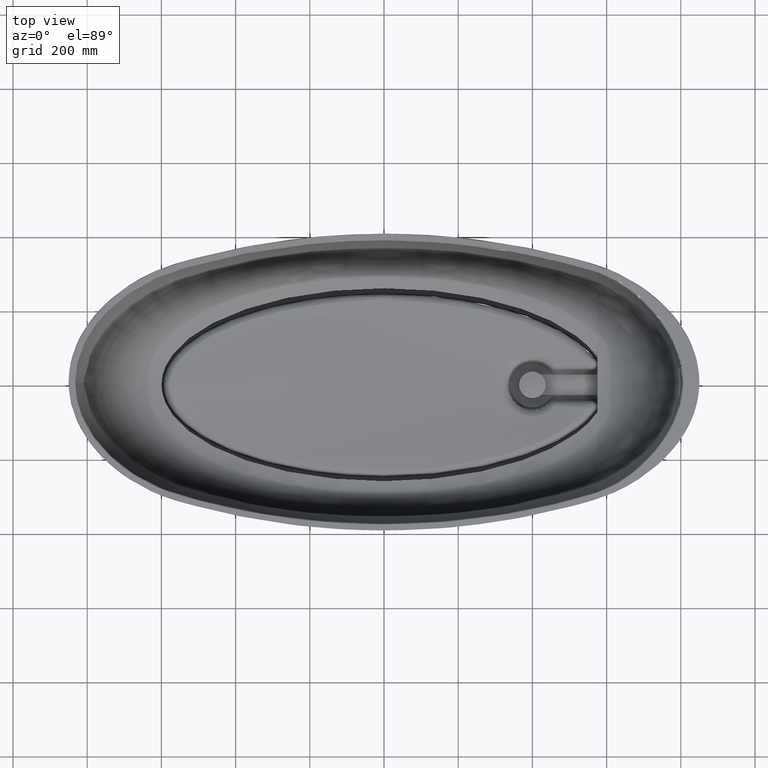
[diagram: clean part render]
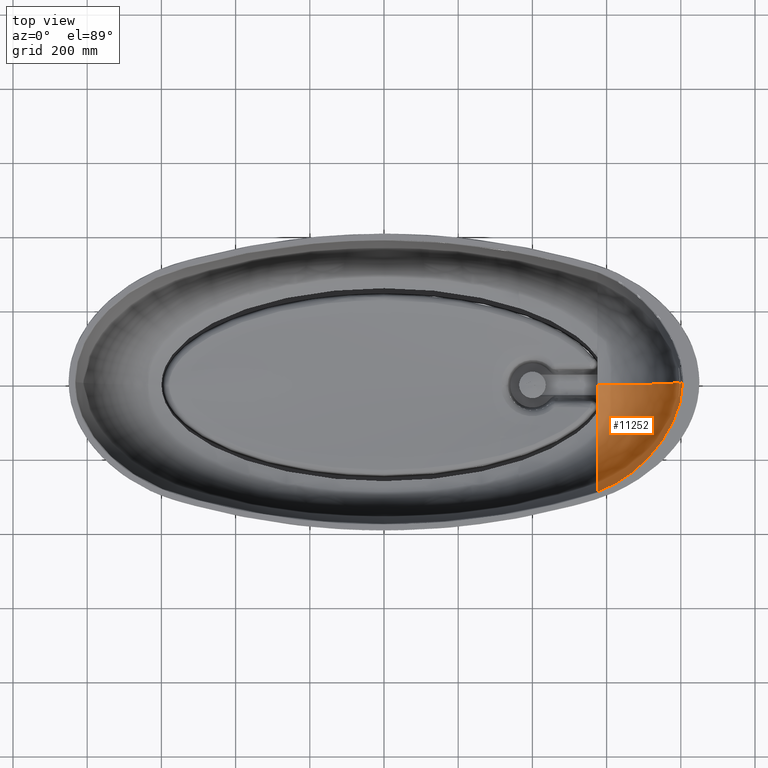
[diagram: same view with one face highlighted and labeled with its STEP entity id]
A machine part, top view. The second image highlights one B-rep face of the part: STEP entity #11252.
In plain terms, the highlighted face is a freeform B-spline surface patch.
Its self-contained STEP definition (entity closure, byte-faithful):
#11252=ADVANCED_FACE('',(#12626),#34462,.T.);
#12626=FACE_OUTER_BOUND('',#14111,.T.);
#14111=EDGE_LOOP('',(#20617,#20618,#20619,#20620,#20621,#20622,#20623));
#20617=ORIENTED_EDGE('',*,*,#25889,.F.);
#20618=ORIENTED_EDGE('',*,*,#25880,.F.);
#20619=ORIENTED_EDGE('',*,*,#25892,.F.);
#20620=ORIENTED_EDGE('',*,*,#25891,.F.);
#20621=ORIENTED_EDGE('',*,*,#25890,.F.);
#20622=ORIENTED_EDGE('',*,*,#25882,.F.);
#20623=ORIENTED_EDGE('',*,*,#25974,.F.);
#25880=EDGE_CURVE('',#33792,#33781,#29508,.T.);
#25882=EDGE_CURVE('',#33778,#33793,#29510,.T.);
#25889=EDGE_CURVE('',#33781,#33782,#29517,.T.);
#25890=EDGE_CURVE('',#33793,#33790,#29518,.T.);
#25891=EDGE_CURVE('',#33790,#33791,#29519,.T.);
#25892=EDGE_CURVE('',#33791,#33792,#29520,.T.);
#25974=EDGE_CURVE('',#33782,#33778,#29553,.T.);
#29508=B_SPLINE_CURVE_WITH_KNOTS('',3,(#156972,#156973,#156974,#156975),
 .UNSPECIFIED.,.F.,.F.,(4,4),(0.,1.),.UNSPECIFIED.);
#29510=B_SPLINE_CURVE_WITH_KNOTS('',3,(#156980,#156981,#156982,#156983,
#156984,#156985,#156986,#156987,#156988,#156989,#156990,#156991,#156992,
#156993,#156994,#156995,#156996,#156997,#156998,#156999,#157000,#157001,
#157002,#157003,#157004,#157005,#157006,#157007,#157008),.UNSPECIFIED.,
 .F.,.F.,(4,1,1,1,1,1,1,1,1,1,1,1,1,1,1,1,1,1,1,1,1,1,1,1,1,1,4),(4.,4.01704328014299,
4.0202388951698,4.02130410017874,4.02236930518768,4.02556492021449,4.03408656028598,
4.06817312057196,4.10225968085794,4.13634624114392,4.15338952128691,4.1704328014299,
4.20451936171589,4.23860592200187,4.27269248228785,4.30677904257383,4.34086560285981,
4.37495216314579,4.40903872343177,4.47721184400373,4.51129840428971,4.5453849645757,
4.61355808514766,4.68173120571962,4.81807744686355,4.95442368800747,5.),
 .UNSPECIFIED.);
#29517=B_SPLINE_CURVE_WITH_KNOTS('',3,(#157097,#157098,#157099,#157100,
#157101,#157102,#157103,#157104,#157105,#157106,#157107,#157108),
 .UNSPECIFIED.,.F.,.F.,(4,2,2,2,2,4),(6.,6.2418621296976,6.36769641347854,
6.49608280290512,6.75572383476138,7.),.UNSPECIFIED.);
#29518=B_SPLINE_CURVE_WITH_KNOTS('',3,(#157109,#157110,#157111,#157112),
 .UNSPECIFIED.,.F.,.F.,(4,4),(2.,3.),.UNSPECIFIED.);
#29519=B_SPLINE_CURVE_WITH_KNOTS('',3,(#157113,#157114,#157115,#157116,
#157117,#157118,#157119,#157120,#157121,#157122,#157123,#157124,#157125,
#157126),.UNSPECIFIED.,.F.,.F.,(4,2,2,2,2,2,4),(3.,3.19572112751265,3.3172770653698,
3.50084059097141,3.683261250967,3.80420503798681,4.),.UNSPECIFIED.);
#29520=B_SPLINE_CURVE_WITH_KNOTS('',3,(#157127,#157128,#157129,#157130),
 .UNSPECIFIED.,.F.,.F.,(4,4),(4.,5.),.UNSPECIFIED.);
#29553=B_SPLINE_CURVE_WITH_KNOTS('',3,(#157485,#157486,#157487,#157488,
#157489,#157490,#157491,#157492,#157493,#157494,#157495,#157496,#157497,
#157498,#157499,#157500,#157501,#157502,#157503,#157504,#157505,#157506,
#157507,#157508,#157509,#157510,#157511,#157512,#157513,#157514,#157515,
#157516,#157517,#157518,#157519,#157520,#157521,#157522,#157523,#157524,
#157525,#157526,#157527,#157528,#157529),.UNSPECIFIED.,.F.,.F.,(4,1,1,1,
1,1,1,1,1,1,1,1,1,1,1,1,1,1,1,1,1,1,1,1,1,1,3,1,1,1,1,1,1,1,1,1,1,1,1,1,
4),(7.,7.12058403241916,7.24621488493071,7.37184573744226,7.43466116369803,
7.49747658995381,7.52888430308169,7.56029201620958,7.62310744246535,7.65451515559324,
7.68592286872113,7.71733058184902,7.7487382949769,7.78014600810479,7.81155372123268,
7.84296143436056,7.85866529092451,7.87436914748845,7.90577686061634,7.93718457374422,
7.96859228687211,7.97644421515408,7.97938868825982,7.98037017929507,7.98135167033032,
7.98429614343606,8.,8.015625,8.03125,8.046875,8.0625,8.09375,8.125,8.1875,
8.25,8.375,8.5,8.625,8.75,8.875,9.),.UNSPECIFIED.);
#33778=VERTEX_POINT('',#156886);
#33781=VERTEX_POINT('',#156889);
#33782=VERTEX_POINT('',#156890);
#33790=VERTEX_POINT('',#156898);
#33791=VERTEX_POINT('',#156899);
#33792=VERTEX_POINT('',#156900);
#33793=VERTEX_POINT('',#156901);
#34462=B_SPLINE_SURFACE_WITH_KNOTS('',3,3,((#156103,#156104,#156105,#156106,
#156107,#156108,#156109,#156110,#156111,#156112,#156113,#156114,#156115,
#156116,#156117,#156118,#156119,#156120,#156121,#156122,#156123,#156124,
#156125,#156126,#156127,#156128,#156129,#156130,#156131,#156132,#156133),
(#156134,#156135,#156136,#156137,#156138,#156139,#156140,#156141,#156142,
#156143,#156144,#156145,#156146,#156147,#156148,#156149,#156150,#156151,
#156152,#156153,#156154,#156155,#156156,#156157,#156158,#156159,#156160,
#156161,#156162,#156163,#156164),(#156165,#156166,#156167,#156168,#156169,
#156170,#156171,#156172,#156173,#156174,#156175,#156176,#156177,#156178,
#156179,#156180,#156181,#156182,#156183,#156184,#156185,#156186,#156187,
#156188,#156189,#156190,#156191,#156192,#156193,#156194,#156195),(#156196,
#156197,#156198,#156199,#156200,#156201,#156202,#156203,#156204,#156205,
#156206,#156207,#156208,#156209,#156210,#156211,#156212,#156213,#156214,
#156215,#156216,#156217,#156218,#156219,#156220,#156221,#156222,#156223,
#156224,#156225,#156226),(#156227,#156228,#156229,#156230,#156231,#156232,
#156233,#156234,#156235,#156236,#156237,#156238,#156239,#156240,#156241,
#156242,#156243,#156244,#156245,#156246,#156247,#156248,#156249,#156250,
#156251,#156252,#156253,#156254,#156255,#156256,#156257),(#156258,#156259,
#156260,#156261,#156262,#156263,#156264,#156265,#156266,#156267,#156268,
#156269,#156270,#156271,#156272,#156273,#156274,#156275,#156276,#156277,
#156278,#156279,#156280,#156281,#156282,#156283,#156284,#156285,#156286,
#156287,#156288),(#156289,#156290,#156291,#156292,#156293,#156294,#156295,
#156296,#156297,#156298,#156299,#156300,#156301,#156302,#156303,#156304,
#156305,#156306,#156307,#156308,#156309,#156310,#156311,#156312,#156313,
#156314,#156315,#156316,#156317,#156318,#156319),(#156320,#156321,#156322,
#156323,#156324,#156325,#156326,#156327,#156328,#156329,#156330,#156331,
#156332,#156333,#156334,#156335,#156336,#156337,#156338,#156339,#156340,
#156341,#156342,#156343,#156344,#156345,#156346,#156347,#156348,#156349,
#156350),(#156351,#156352,#156353,#156354,#156355,#156356,#156357,#156358,
#156359,#156360,#156361,#156362,#156363,#156364,#156365,#156366,#156367,
#156368,#156369,#156370,#156371,#156372,#156373,#156374,#156375,#156376,
#156377,#156378,#156379,#156380,#156381),(#156382,#156383,#156384,#156385,
#156386,#156387,#156388,#156389,#156390,#156391,#156392,#156393,#156394,
#156395,#156396,#156397,#156398,#156399,#156400,#156401,#156402,#156403,
#156404,#156405,#156406,#156407,#156408,#156409,#156410,#156411,#156412),
(#156413,#156414,#156415,#156416,#156417,#156418,#156419,#156420,#156421,
#156422,#156423,#156424,#156425,#156426,#156427,#156428,#156429,#156430,
#156431,#156432,#156433,#156434,#156435,#156436,#156437,#156438,#156439,
#156440,#156441,#156442,#156443),(#156444,#156445,#156446,#156447,#156448,
#156449,#156450,#156451,#156452,#156453,#156454,#156455,#156456,#156457,
#156458,#156459,#156460,#156461,#156462,#156463,#156464,#156465,#156466,
#156467,#156468,#156469,#156470,#156471,#156472,#156473,#156474),(#156475,
#156476,#156477,#156478,#156479,#156480,#156481,#156482,#156483,#156484,
#156485,#156486,#156487,#156488,#156489,#156490,#156491,#156492,#156493,
#156494,#156495,#156496,#156497,#156498,#156499,#156500,#156501,#156502,
#156503,#156504,#156505),(#156506,#156507,#156508,#156509,#156510,#156511,
#156512,#156513,#156514,#156515,#156516,#156517,#156518,#156519,#156520,
#156521,#156522,#156523,#156524,#156525,#156526,#156527,#156528,#156529,
#156530,#156531,#156532,#156533,#156534,#156535,#156536),(#156537,#156538,
#156539,#156540,#156541,#156542,#156543,#156544,#156545,#156546,#156547,
#156548,#156549,#156550,#156551,#156552,#156553,#156554,#156555,#156556,
#156557,#156558,#156559,#156560,#156561,#156562,#156563,#156564,#156565,
#156566,#156567),(#156568,#156569,#156570,#156571,#156572,#156573,#156574,
#156575,#156576,#156577,#156578,#156579,#156580,#156581,#156582,#156583,
#156584,#156585,#156586,#156587,#156588,#156589,#156590,#156591,#156592,
#156593,#156594,#156595,#156596,#156597,#156598),(#156599,#156600,#156601,
#156602,#156603,#156604,#156605,#156606,#156607,#156608,#156609,#156610,
#156611,#156612,#156613,#156614,#156615,#156616,#156617,#156618,#156619,
#156620,#156621,#156622,#156623,#156624,#156625,#156626,#156627,#156628,
#156629)),.UNSPECIFIED.,.F.,.F.,.F.,(4,1,1,1,1,1,1,1,1,1,1,1,1,1,4),(4,
2,1,1,1,1,1,1,1,1,1,1,1,1,1,1,1,1,1,1,1,1,1,1,1,1,1,4),(0.,0.015625,0.03125,
0.046875,0.0625,0.09375,0.125,0.1875,0.25,0.375,0.5,0.625,0.75,0.875,1.),
(0.,0.0476190476190477,0.166666666666667,0.285714285714286,0.404761904761905,
0.464285714285714,0.523809523809524,0.553571428571429,0.583333333333333,
0.642857142857143,0.672619047619048,0.702380952380952,0.732142857142857,
0.761904761904762,0.791666666666667,0.821428571428571,0.851190476190476,
0.866071428571429,0.880952380952381,0.910714285714286,0.94047619047619,
0.970238095238095,0.977678571428571,0.98046875,0.98139880952381,0.982328869047619,
0.985119047619048,1.),.UNSPECIFIED.);
#156103=CARTESIAN_POINT('',(174.999130643164,-299.388268595295,478.034238478728));
#156104=CARTESIAN_POINT('',(174.999420428776,-298.352637917445,469.174438369371));
#156105=CARTESIAN_POINT('',(174.999710214388,-297.317007239595,460.314638260014));
#156106=CARTESIAN_POINT('',(175.00072446403,-293.692299867119,429.305337877264));
#156107=CARTESIAN_POINT('',(175.003077154341,-288.261470238738,385.031795923752));
#156108=CARTESIAN_POINT('',(175.000750142309,-278.861585353443,318.787846463549));
#156109=CARTESIAN_POINT('',(174.999295868186,-269.478274301766,263.820978523691));
#156110=CARTESIAN_POINT('',(175.000136627797,-260.422027111646,220.134758844099));
#156111=CARTESIAN_POINT('',(174.99902897646,-253.836364547655,193.044804682452));
#156112=CARTESIAN_POINT('',(174.998805142223,-247.831835665824,171.560796861443));
#156113=CARTESIAN_POINT('',(174.999213453562,-241.224283258894,150.250564207692));
#156114=CARTESIAN_POINT('',(174.998977205088,-233.501574693352,129.31660626298));
#156115=CARTESIAN_POINT('',(175.00029888287,-224.19387001814,109.030233129883));
#156116=CARTESIAN_POINT('',(175.001034819381,-216.204895844321,94.3287454547133));
#156117=CARTESIAN_POINT('',(175.001633075543,-207.009668258734,80.3191380125979));
#156118=CARTESIAN_POINT('',(175.000022196962,-196.434764794036,67.336108094081));
#156119=CARTESIAN_POINT('',(175.001843353779,-184.30053021774,55.7593886116595));
#156120=CARTESIAN_POINT('',(174.999455497699,-170.712940260174,45.9322749272538));
#156121=CARTESIAN_POINT('',(174.998790670813,-158.349077713338,39.4371885923894));
#156122=CARTESIAN_POINT('',(174.99873896707,-148.031661578973,35.1831238437353));
#156123=CARTESIAN_POINT('',(174.9989753378,-137.488297310385,31.5275662526598));
#156124=CARTESIAN_POINT('',(174.997227819998,-124.003985685467,27.972351266792));
#156125=CARTESIAN_POINT('',(174.997966007626,-107.533037538149,24.950610493724));
#156126=CARTESIAN_POINT('',(174.99871408687,-95.0908068108768,23.3522051793587));
#156127=CARTESIAN_POINT('',(174.999294572132,-87.6376736175827,22.5894559335856));
#156128=CARTESIAN_POINT('',(174.999450132126,-85.5563040834621,22.3902591047801));
#156129=CARTESIAN_POINT('',(174.999513024916,-84.6888673066986,22.309270400798));
#156130=CARTESIAN_POINT('',(174.999574797646,-83.8213335439738,22.2292766439347));
#156131=CARTESIAN_POINT('',(174.999811663103,-80.3504446012106,21.9171808716345));
#156132=CARTESIAN_POINT('',(174.999973418149,-77.0499959370699,21.6551576704996));
#156133=CARTESIAN_POINT('',(175.000000000374,-74.2695956385836,21.4548366049806));
#156134=CARTESIAN_POINT('',(176.839205282708,-298.819879766341,478.373990655156));
#156135=CARTESIAN_POINT('',(176.826108853736,-297.768474624589,469.400723690803));
#156136=CARTESIAN_POINT('',(176.813012424764,-296.717069482836,460.42745672645));
#156137=CARTESIAN_POINT('',(176.767174923362,-293.0371514867,429.021022351215));
#156138=CARTESIAN_POINT('',(176.703761048132,-287.534100038304,384.288862420038));
#156139=CARTESIAN_POINT('',(176.598847083864,-278.044941787954,317.656035407103));
#156140=CARTESIAN_POINT('',(176.503295651574,-268.600388993576,262.589290012918));
#156141=CARTESIAN_POINT('',(176.419446456408,-259.502270619609,218.939127271346));
#156142=CARTESIAN_POINT('',(176.359462430517,-252.893091748145,191.915060931463));
#156143=CARTESIAN_POINT('',(176.307287002408,-246.87160396948,170.506634663546));
#156144=CARTESIAN_POINT('',(176.251154693148,-240.247895566163,149.285972073297));
#156145=CARTESIAN_POINT('',(176.186575941848,-232.51209003913,128.459873270819));
#156146=CARTESIAN_POINT('',(176.110233559387,-223.195327295008,108.295008778723));
#156147=CARTESIAN_POINT('',(176.044048173428,-215.203341265744,93.6893283415485));
#156148=CARTESIAN_POINT('',(175.967086718612,-206.010858693696,79.7788378861629));
#156149=CARTESIAN_POINT('',(175.876001886245,-195.447541311588,66.8953148562662));
#156150=CARTESIAN_POINT('',(175.776341562189,-183.338858674919,55.4162464983931));
#156151=CARTESIAN_POINT('',(175.664669987115,-169.795473357302,45.6804536720329));
#156152=CARTESIAN_POINT('',(175.570666372507,-157.486448604594,39.2507584116613));
#156153=CARTESIAN_POINT('',(175.496833353665,-147.222259959051,35.0398951760003));
#156154=CARTESIAN_POINT('',(175.423766848521,-136.737020468751,31.4212500149213));
#156155=CARTESIAN_POINT('',(175.33169248701,-123.332384410479,27.8995946236842));
#156156=CARTESIAN_POINT('',(175.223758430264,-106.961558516151,24.902358029541));
#156157=CARTESIAN_POINT('',(175.141431523995,-94.5938624518365,23.3143909320862));
#156158=CARTESIAN_POINT('',(175.091391905487,-87.1844064406691,22.5562013177659));
#156159=CARTESIAN_POINT('',(175.077344984104,-85.1151570204868,22.3581491562553));
#156160=CARTESIAN_POINT('',(175.071477443246,-84.252758421454,22.2776213579703));
#156161=CARTESIAN_POINT('',(175.065602749079,-83.3902571292796,22.1980797252769));
#156162=CARTESIAN_POINT('',(175.042043861521,-79.9394510371034,21.8877254587542));
#156163=CARTESIAN_POINT('',(175.019371418908,-76.6578579483922,21.6270709913258));
#156164=CARTESIAN_POINT('',(174.999990800902,-73.8931451753337,21.4277478722663));
#156165=CARTESIAN_POINT('',(180.525577797297,-297.638512816391,478.997366485543));
#156166=CARTESIAN_POINT('',(180.484033337934,-296.555810072271,469.815898490193));
#156167=CARTESIAN_POINT('',(180.44248887857,-295.473107328152,460.634430494844));
#156168=CARTESIAN_POINT('',(180.297083270798,-291.683647723734,428.499292511121));
#156169=CARTESIAN_POINT('',(180.094458596297,-286.036666264904,382.930971289615));
#156170=CARTESIAN_POINT('',(179.774651055852,-276.367800632445,315.604852941158));
#156171=CARTESIAN_POINT('',(179.483864880245,-266.798781523549,260.37863702272));
#156172=CARTESIAN_POINT('',(179.225454032659,-257.615502934179,216.815625383851));
#156173=CARTESIAN_POINT('',(179.04475903431,-250.958896846485,189.925804822333));
#156174=CARTESIAN_POINT('',(178.886546379003,-244.903696076806,168.666526088914));
#156175=CARTESIAN_POINT('',(178.71548617275,-238.248442587369,147.620368373358));
#156176=CARTESIAN_POINT('',(178.520884355989,-230.48815603643,127.001511608545));
#156177=CARTESIAN_POINT('',(178.288983126635,-221.156521608131,107.067390334034));
#156178=CARTESIAN_POINT('',(178.089574597027,-213.161829666495,92.6421547721907));
#156179=CARTESIAN_POINT('',(177.859140522298,-203.979103830458,78.9166226943624));
#156180=CARTESIAN_POINT('',(177.591952267913,-193.44406898057,66.216515214667));
#156181=CARTESIAN_POINT('',(177.293396049925,-181.392114001999,54.9144517639639));
#156182=CARTESIAN_POINT('',(176.967998154834,-167.942563607758,45.3402231248367));
#156183=CARTESIAN_POINT('',(176.691514405822,-155.74702335598,39.021623665143));
#156184=CARTESIAN_POINT('',(176.47331305024,-145.591770542842,34.8805309148796));
#156185=CARTESIAN_POINT('',(176.256736117508,-135.224947226211,31.318549562843));
#156186=CARTESIAN_POINT('',(175.98764255375,-121.981846488393,27.8418112087149));
#156187=CARTESIAN_POINT('',(175.666584023899,-105.813506181591,24.8657835196678));
#156188=CARTESIAN_POINT('',(175.421305608784,-93.5965244455615,23.2769140472873));
#156189=CARTESIAN_POINT('',(175.271990041071,-86.2754450769949,22.514420319771));
#156190=CARTESIAN_POINT('',(175.230090230655,-84.2307242827041,22.3148808027833));
#156191=CARTESIAN_POINT('',(175.212592580428,-83.3785228125081,22.2336962558306));
#156192=CARTESIAN_POINT('',(175.195076035123,-82.5262075081728,22.1534779420894));
#156193=CARTESIAN_POINT('',(175.124852743307,-79.1160536101914,21.840263752216));
#156194=CARTESIAN_POINT('',(175.057405437739,-75.8726450008391,21.5762338058393));
#156195=CARTESIAN_POINT('',(174.99997343555,-73.1397156306333,21.3736970964435));
#156196=CARTESIAN_POINT('',(186.051314994857,-295.720657482572,479.954577996502));
#156197=CARTESIAN_POINT('',(185.968731136062,-294.596224466058,470.453492773205));
#156198=CARTESIAN_POINT('',(185.886147277267,-293.471791449545,460.952407549908));
#156199=CARTESIAN_POINT('',(185.597103771486,-289.536275891747,427.69860926837));
#156200=CARTESIAN_POINT('',(185.191716220215,-283.694616538143,380.84139000189));
#156201=CARTESIAN_POINT('',(184.551584717085,-273.77429271636,312.431018359409));
#156202=CARTESIAN_POINT('',(183.962610617283,-264.023940641959,256.937601362476));
#156203=CARTESIAN_POINT('',(183.433432872323,-254.713605167703,213.490826309389));
#156204=CARTESIAN_POINT('',(183.064438431791,-247.985981382689,186.797293377231));
#156205=CARTESIAN_POINT('',(182.740585519491,-241.880767404506,165.76053357054));
#156206=CARTESIAN_POINT('',(182.390400227435,-235.179671128246,144.976959210344));
#156207=CARTESIAN_POINT('',(181.994033420437,-227.385801426782,124.673092051927));
#156208=CARTESIAN_POINT('',(181.523789129835,-218.038324236953,105.092642880451));
#156209=CARTESIAN_POINT('',(181.122339607917,-210.046417734754,90.9452779792456));
#156210=CARTESIAN_POINT('',(180.661709800326,-200.887344941834,77.5055216255653));
#156211=CARTESIAN_POINT('',(180.133084053,-190.405617372956,65.0894043230335));
#156212=CARTESIAN_POINT('',(179.541672761889,-178.450547781675,54.0611824644703));
#156213=CARTESIAN_POINT('',(178.902650413242,-165.1524139903,44.7368910036304));
#156214=CARTESIAN_POINT('',(178.358092856846,-153.133479644348,38.5912205790459));
#156215=CARTESIAN_POINT('',(177.927009579428,-143.144838392923,34.5609078829198));
#156216=CARTESIAN_POINT('',(177.498302747511,-132.957767968792,31.0909507285244));
#156217=CARTESIAN_POINT('',(176.966456805109,-119.957799765397,27.6927558588131));
#156218=CARTESIAN_POINT('',(176.327891248767,-104.092580757148,24.7658677754968));
#156219=CARTESIAN_POINT('',(175.839359919878,-92.1007354626237,23.191395025726));
#156220=CARTESIAN_POINT('',(175.541780319919,-84.9116371140052,22.4326775695156));
#156221=CARTESIAN_POINT('',(175.458277915739,-82.9035445056747,22.2338297918616));
#156222=CARTESIAN_POINT('',(175.423408431267,-82.0665702026616,22.1528872675026));
#156223=CARTESIAN_POINT('',(175.388502171507,-81.2294653271537,22.0728860276997));
#156224=CARTESIAN_POINT('',(175.248572882245,-77.8800156378544,21.7603491754775));
#156225=CARTESIAN_POINT('',(175.114232779373,-74.6936261336495,21.4961488391583));
#156226=CARTESIAN_POINT('',(174.99995035828,-72.0081622529892,21.293035440884));
#156227=CARTESIAN_POINT('',(191.575998574491,-293.662350821214,480.882629715933));
#156228=CARTESIAN_POINT('',(191.452247666507,-292.500068946929,471.071711494698));
#156229=CARTESIAN_POINT('',(191.328496758523,-291.337787072644,461.260793273463));
#156230=CARTESIAN_POINT('',(190.895368580578,-287.269800512645,426.92257949914));
#156231=CARTESIAN_POINT('',(190.285521413757,-281.248995304966,378.816610604512));
#156232=CARTESIAN_POINT('',(189.318790208061,-271.089728182982,309.357838166834));
#156233=CARTESIAN_POINT('',(188.422344067489,-261.161138225687,253.609314549041));
#156234=CARTESIAN_POINT('',(187.612202304624,-251.723931719199,210.280259543227));
#156235=CARTESIAN_POINT('',(187.047672643383,-244.925588093334,183.781186609143));
#156236=CARTESIAN_POINT('',(186.552070552699,-238.771311935289,162.964289754355));
#156237=CARTESIAN_POINT('',(186.016807039498,-232.026380478683,142.439962773591));
#156238=CARTESIAN_POINT('',(185.413175393424,-224.202782983598,122.446979422765));
#156239=CARTESIAN_POINT('',(184.701190772699,-214.846735125961,103.215457642371));
#156240=CARTESIAN_POINT('',(184.096855990179,-206.865085548381,89.3419208954138));
#156241=CARTESIAN_POINT('',(183.407529915803,-197.739317135605,76.183038455815));
#156242=CARTESIAN_POINT('',(182.621768666199,-187.322427618451,64.0445878921368));
#156243=CARTESIAN_POINT('',(181.744665490194,-175.476734105556,53.2814693813582));
#156244=CARTESIAN_POINT('',(180.800798932077,-162.341521970435,44.1957838375973));
#156245=CARTESIAN_POINT('',(179.995501561973,-150.506469158692,38.2120117008865));
#156246=CARTESIAN_POINT('',(179.356694816052,-140.688507437393,34.2837735095934));
#156247=CARTESIAN_POINT('',(178.720572660332,-130.684268665246,30.8973798807767));
#156248=CARTESIAN_POINT('',(177.930901743157,-117.92961580127,27.5682654995132));
#156249=CARTESIAN_POINT('',(176.979848780607,-102.368751513128,24.6810345946901));
#156250=CARTESIAN_POINT('',(176.251548092785,-90.6026251655511,23.1150604201952));
#156251=CARTESIAN_POINT('',(175.807796029401,-83.5458753358791,22.3568538923481));
#156252=CARTESIAN_POINT('',(175.68327494706,-81.5745151495044,22.1578099446229));
#156253=CARTESIAN_POINT('',(175.631277333224,-80.7528120759791,22.0767421939476));
#156254=CARTESIAN_POINT('',(175.579225160528,-79.9309619234659,21.9965924111505));
#156255=CARTESIAN_POINT('',(175.370566333831,-76.6423958048625,21.6832827555496));
#156256=CARTESIAN_POINT('',(175.170267525287,-73.5132077630291,21.4175887363337));
#156257=CARTESIAN_POINT('',(174.999930121749,-70.8753766087607,21.2128227328566));
#156258=CARTESIAN_POINT('',(198.935549752651,-290.731629333933,482.098714693382));
#156259=CARTESIAN_POINT('',(198.757385311289,-289.524338672479,471.881873835927));
#156260=CARTESIAN_POINT('',(198.579220869928,-288.317048011025,461.665032978472));
#156261=CARTESIAN_POINT('',(197.955645325163,-284.091530695937,425.90608997738));
#156262=CARTESIAN_POINT('',(197.07368453285,-277.854009451136,376.163015632005));
#156263=CARTESIAN_POINT('',(195.666093495458,-267.395046929587,305.326738514241));
#156264=CARTESIAN_POINT('',(194.349056542046,-257.234734577779,249.240485676308));
#156265=CARTESIAN_POINT('',(193.151809048254,-247.629883012732,206.064800320989));
#156266=CARTESIAN_POINT('',(192.317498923002,-240.738278872285,179.821311251642));
#156267=CARTESIAN_POINT('',(191.585152854354,-234.520219849978,159.294324433291));
#156268=CARTESIAN_POINT('',(190.79551949179,-227.719745656635,139.112379898412));
#156269=CARTESIAN_POINT('',(189.908439291421,-219.861641560543,119.530890628132));
#156270=CARTESIAN_POINT('',(188.869643359378,-210.503489738212,100.762026235753));
#156271=CARTESIAN_POINT('',(187.993556052866,-202.544986052994,87.2516798644981));
#156272=CARTESIAN_POINT('',(187.001002682445,-193.475766741515,74.4649358904545));
#156273=CARTESIAN_POINT('',(185.877611873926,-183.159754157632,62.6932099247551));
#156274=CARTESIAN_POINT('',(184.628388228428,-171.475426016089,52.2776938018206));
#156275=CARTESIAN_POINT('',(183.288857815076,-158.571609736827,43.501715438726));
#156276=CARTESIAN_POINT('',(182.144867027078,-146.990515357447,37.7253970403808));
#156277=CARTESIAN_POINT('',(181.235326743471,-137.404885960579,33.9270648734818));
#156278=CARTESIAN_POINT('',(180.328294437569,-127.647902861276,30.6464628586853));
#156279=CARTESIAN_POINT('',(179.200641012591,-115.222536283148,27.4043128605643));
#156280=CARTESIAN_POINT('',(177.838682365399,-100.068316671021,24.5669071084517));
#156281=CARTESIAN_POINT('',(176.794598396819,-88.6033227414388,23.0120571084534));
#156282=CARTESIAN_POINT('',(176.158284422951,-81.723160125845,22.2549325911239));
#156283=CARTESIAN_POINT('',(175.979722539205,-79.8008123699906,22.0557837319475));
#156284=CARTESIAN_POINT('',(175.905158931964,-78.999486615058,21.9746200190642));
#156285=CARTESIAN_POINT('',(175.830517097991,-78.1979920335301,21.8943464031921));
#156286=CARTESIAN_POINT('',(175.531306075356,-74.9906702814612,21.5803280516384));
#156287=CARTESIAN_POINT('',(175.244100532087,-71.9378278414106,21.3130583538296));
#156288=CARTESIAN_POINT('',(174.999906754003,-69.3635884530221,21.1065169713397));
#156289=CARTESIAN_POINT('',(208.116823384563,-286.72364511494,483.570595808972));
#156290=CARTESIAN_POINT('',(207.871311781834,-285.469864072687,472.862574402859));
#156291=CARTESIAN_POINT('',(207.625800179106,-284.216083030434,462.154552996747));
#156292=CARTESIAN_POINT('',(206.766509569556,-279.827849382548,424.676478075353));
#156293=CARTESIAN_POINT('',(205.544247415867,-273.359328132764,372.951314527669));
#156294=CARTESIAN_POINT('',(203.57432384116,-262.560690404433,300.444237759202));
#156295=CARTESIAN_POINT('',(201.711542698145,-252.122904044432,243.946811291183));
#156296=CARTESIAN_POINT('',(200.007735192304,-242.312792218687,200.958535502411));
#156297=CARTESIAN_POINT('',(198.820008245124,-235.30754725645,175.027916137126));
#156298=CARTESIAN_POINT('',(197.778072502749,-229.013584365326,154.856732161494));
#156299=CARTESIAN_POINT('',(196.657199899526,-222.149784748191,135.095585347671));
#156300=CARTESIAN_POINT('',(195.403622869284,-214.258610971613,116.020976837095));
#156301=CARTESIAN_POINT('',(193.948973389671,-204.915306553622,97.822971556137));
#156302=CARTESIAN_POINT('',(192.731584607623,-197.003205273649,84.7606942927655));
#156303=CARTESIAN_POINT('',(191.363719627431,-188.026833192041,72.4320705603764));
#156304=CARTESIAN_POINT('',(189.828363791824,-177.863055742943,61.1093766696764));
#156305=CARTESIAN_POINT('',(188.130517516555,-166.408430679501,51.1145267660064));
#156306=CARTESIAN_POINT('',(186.316534558988,-153.819321792996,42.707099506427));
#156307=CARTESIAN_POINT('',(184.765911037424,-142.571435096242,37.1720584428292));
#156308=CARTESIAN_POINT('',(183.529684507327,-133.284767403707,33.5225819305954));
#156309=CARTESIAN_POINT('',(182.294707874181,-123.843113726218,30.3616699632559));
#156310=CARTESIAN_POINT('',(180.755698597636,-111.833349942534,27.2158388501946));
#156311=CARTESIAN_POINT('',(178.891367926536,-97.1890583329677,24.4312605677405));
#156312=CARTESIAN_POINT('',(177.460332799234,-86.1009335930882,22.8867884983988));
#156313=CARTESIAN_POINT('',(176.587981034504,-79.4418294561649,22.129783714));
#156314=CARTESIAN_POINT('',(176.343170039239,-77.5808423596841,21.9302347666806));
#156315=CARTESIAN_POINT('',(176.240942268958,-76.8050294404891,21.8488485285669));
#156316=CARTESIAN_POINT('',(176.138606882331,-76.0290210977686,21.7683229181246));
#156317=CARTESIAN_POINT('',(175.728382376439,-72.9234273632806,21.4530711626909));
#156318=CARTESIAN_POINT('',(175.334625243055,-69.9662103458533,21.1836848638445));
#156319=CARTESIAN_POINT('',(174.999883996079,-67.4716565619327,20.9749293350617));
#156320=CARTESIAN_POINT('',(222.74051257422,-279.593537026028,485.822353920285));
#156321=CARTESIAN_POINT('',(222.388938089186,-278.285088075508,474.363148164696));
#156322=CARTESIAN_POINT('',(222.037363604152,-276.976639124987,462.903942409107));
#156323=CARTESIAN_POINT('',(220.806852906535,-272.397067798165,422.796722264545));
#156324=CARTESIAN_POINT('',(219.040402467412,-265.640770149177,368.037712652554));
#156325=CARTESIAN_POINT('',(216.14753198727,-254.375045935074,292.96691786131));
#156326=CARTESIAN_POINT('',(213.371391688005,-243.525780392992,235.835405644124));
#156327=CARTESIAN_POINT('',(210.812983505583,-233.403399870314,193.137281707437));
#156328=CARTESIAN_POINT('',(209.028937313237,-226.227014819273,167.692249206514));
#156329=CARTESIAN_POINT('',(207.466101821573,-219.822951598757,148.075039774656));
#156330=CARTESIAN_POINT('',(205.790780878316,-212.873461256509,128.970183669866));
#156331=CARTESIAN_POINT('',(203.929012503041,-204.952347455786,110.688255284142));
#156332=CARTESIAN_POINT('',(201.797099165611,-195.669477654374,93.3846649403194));
#156333=CARTESIAN_POINT('',(200.032447657837,-187.867129904245,81.0242155830192));
#156334=CARTESIAN_POINT('',(198.073375675399,-179.08336019934,69.4111755078537));
#156335=CARTESIAN_POINT('',(195.900527703518,-169.21430428546,58.7851333003385));
#156336=CARTESIAN_POINT('',(193.519039469011,-158.181303646082,49.4333154384698));
#156337=CARTESIAN_POINT('',(190.987035790221,-146.144420846594,41.5770446957613));
#156338=CARTESIAN_POINT('',(188.819976540409,-135.459406812832,36.3917893538698));
#156339=CARTESIAN_POINT('',(187.085213472765,-126.666962722949,32.9536665099485));
#156340=CARTESIAN_POINT('',(185.347700947356,-117.741290802262,29.9596172562161));
#156341=CARTESIAN_POINT('',(183.173951125509,-106.403445621287,26.9439463355196));
#156342=CARTESIAN_POINT('',(180.530017109599,-92.5773914713623,24.2261734564334));
#156343=CARTESIAN_POINT('',(178.496819427699,-82.092705309715,22.6921941594728));
#156344=CARTESIAN_POINT('',(177.257019889646,-75.7877276433022,21.9335077447092));
#156345=CARTESIAN_POINT('',(176.909064439536,-74.0250521761741,21.732947239216));
#156346=CARTESIAN_POINT('',(176.763765492536,-73.2901196169049,21.6510694805599));
#156347=CARTESIAN_POINT('',(176.618312575428,-72.5549505917242,21.5700160332342));
#156348=CARTESIAN_POINT('',(176.03524261481,-69.6123806025521,21.2523756681612));
#156349=CARTESIAN_POINT('',(175.475577861528,-66.8084809947359,20.979578375029));
#156350=CARTESIAN_POINT('',(174.999859960287,-64.4417650532643,20.7675182101491));
#156351=CARTESIAN_POINT('',(240.844512274883,-269.369598350957,488.437653104322));
#156352=CARTESIAN_POINT('',(240.363849264875,-268.027547392593,476.106419608118));
#156353=CARTESIAN_POINT('',(239.883186254867,-266.685496434229,463.775186111914));
#156354=CARTESIAN_POINT('',(238.200865719839,-261.988318079956,420.6158688752));
#156355=CARTESIAN_POINT('',(235.755140326309,-255.019023067561,362.330438654178));
#156356=CARTESIAN_POINT('',(231.66572687633,-243.315568032153,284.269503580456));
#156357=CARTESIAN_POINT('',(227.676861298954,-232.024747957792,226.394641180002));
#156358=CARTESIAN_POINT('',(223.975354268037,-221.555286572144,184.041624435709));
#156359=CARTESIAN_POINT('',(221.394942971675,-214.193282827818,159.174080903202));
#156360=CARTESIAN_POINT('',(219.139799491986,-207.678851884908,140.218132999802));
#156361=CARTESIAN_POINT('',(216.732821741215,-200.656477144446,121.8982666228));
#156362=CARTESIAN_POINT('',(214.077905633747,-192.743884369079,104.567603994536));
#156363=CARTESIAN_POINT('',(211.084277124955,-183.604279803043,88.3395876535367));
#156364=CARTESIAN_POINT('',(208.637678889313,-176.002483962589,76.8224418266105));
#156365=CARTESIAN_POINT('',(205.959687144964,-167.536092536628,66.0655137310106));
#156366=CARTESIAN_POINT('',(203.031037466265,-158.122785141542,56.2645365434193));
#156367=CARTESIAN_POINT('',(199.857140750501,-147.707824559006,47.6575335831102));
#156368=CARTESIAN_POINT('',(196.501437862696,-136.442113743651,40.4181758207945));
#156369=CARTESIAN_POINT('',(193.625242799137,-126.50930380532,35.6045995232365));
#156370=CARTESIAN_POINT('',(191.311148318465,-118.360129831728,32.3827229602963));
#156371=CARTESIAN_POINT('',(188.986012307014,-110.097463144192,29.5534827615227));
#156372=CARTESIAN_POINT('',(186.062423093987,-99.6097638007514,26.6581685956786));
#156373=CARTESIAN_POINT('',(182.489945866756,-86.8090338470694,23.9925816557776));
#156374=CARTESIAN_POINT('',(179.736757517771,-77.0786666796343,22.4607391145813));
#156375=CARTESIAN_POINT('',(178.057428833947,-71.2167697759282,21.6965062654433));
#156376=CARTESIAN_POINT('',(177.586078116668,-69.5771354275016,21.4939829839975));
#156377=CARTESIAN_POINT('',(177.389251641926,-68.8933743722316,21.4112335358884));
#156378=CARTESIAN_POINT('',(177.192215019009,-68.2093288937202,21.3292818318936));
#156379=CARTESIAN_POINT('',(176.402358815056,-65.4708654431306,21.0078469707576));
#156380=CARTESIAN_POINT('',(175.644203234391,-62.8590713557977,20.7306606999356));
#156381=CARTESIAN_POINT('',(174.999850521843,-60.6526856421231,20.514810140782));
#156382=CARTESIAN_POINT('',(269.217415581512,-250.357344710934,492.175603185823));
#156383=CARTESIAN_POINT('',(268.539130073973,-249.026179234187,478.598783629954));
#156384=CARTESIAN_POINT('',(267.860844566434,-247.695013757441,465.021964074085));
#156385=CARTESIAN_POINT('',(265.486845290046,-243.035934588829,417.503095628545));
#156386=CARTESIAN_POINT('',(261.9586146252,-236.010684995236,354.171833946581));
#156387=CARTESIAN_POINT('',(255.866729164303,-223.931355231989,271.817391775557));
#156388=CARTESIAN_POINT('',(249.804571104402,-212.140313866402,212.875258594073));
#156389=CARTESIAN_POINT('',(244.148031504269,-201.26325953439,171.038384672785));
#156390=CARTESIAN_POINT('',(240.214096050213,-193.69996309226,147.025860366753));
#156391=CARTESIAN_POINT('',(236.792127202253,-187.092618941002,129.050782338632));
#156392=CARTESIAN_POINT('',(233.16317726453,-180.047633656267,111.896675152585));
#156393=CARTESIAN_POINT('',(229.202923623836,-172.258914488105,95.9818940778854));
#156394=CARTESIAN_POINT('',(224.828783399556,-163.488460107828,81.3556730424293));
#156395=CARTESIAN_POINT('',(221.314076626711,-156.328914630791,71.0917687222831));
#156396=CARTESIAN_POINT('',(217.539956335418,-148.508285959964,61.5992531626612));
#156397=CARTESIAN_POINT('',(213.491506509865,-139.973951117548,53.0010368271651));
#156398=CARTESIAN_POINT('',(209.174120861352,-130.697428077041,45.449766022594));
#156399=CARTESIAN_POINT('',(204.644026062151,-120.793628074461,39.0460009057961));
#156400=CARTESIAN_POINT('',(200.752690770632,-112.137452409965,34.6988685413238));
#156401=CARTESIAN_POINT('',(197.598837305471,-105.053490780277,31.7317129766145));
#156402=CARTESIAN_POINT('',(194.415487152702,-97.8752900995767,29.0842784515269));
#156403=CARTESIAN_POINT('',(190.383526182279,-88.757663416027,26.3036051194192));
#156404=CARTESIAN_POINT('',(185.425799888672,-77.5946607437928,23.6647135653504));
#156405=CARTESIAN_POINT('',(181.594155172278,-69.067636805329,22.1164509669003));
#156406=CARTESIAN_POINT('',(179.256376121711,-63.9138380521919,21.337240154263));
#156407=CARTESIAN_POINT('',(178.600158299699,-62.4709424342614,21.1303479639274));
#156408=CARTESIAN_POINT('',(178.326137589307,-61.8690233356207,21.0457537547943));
#156409=CARTESIAN_POINT('',(178.051822755825,-61.2667523750451,20.9619488353504));
#156410=CARTESIAN_POINT('',(176.952184795818,-58.8548452668211,20.6330419385247));
#156411=CARTESIAN_POINT('',(175.896719138015,-56.5507886335135,20.3486666035657));
#156412=CARTESIAN_POINT('',(174.999868285535,-54.6015862857443,20.1274018400876));
#156413=CARTESIAN_POINT('',(303.160361237817,-221.884884157136,495.971457977919));
#156414=CARTESIAN_POINT('',(302.254540687002,-220.670839512182,481.130961893026));
#156415=CARTESIAN_POINT('',(301.348720136189,-219.456794867228,466.290465808132));
#156416=CARTESIAN_POINT('',(298.178348208339,-215.20763860989,414.348729511003));
#156417=CARTESIAN_POINT('',(293.309428205792,-208.593764127309,345.882840526685));
#156418=CARTESIAN_POINT('',(284.555908827918,-196.676996915071,259.143197973164));
#156419=CARTESIAN_POINT('',(275.687760838445,-184.743028708717,199.127545169937));
#156420=CARTESIAN_POINT('',(267.414049687549,-173.737486871137,157.87097717878));
#156421=CARTESIAN_POINT('',(261.694549549626,-166.168215945735,134.786573742497));
#156422=CARTESIAN_POINT('',(256.757034478016,-159.649480322939,117.873110485188));
#156423=CARTESIAN_POINT('',(251.56254843219,-152.791829653111,101.979379401529));
#156424=CARTESIAN_POINT('',(245.966124625485,-145.3875621061,87.5947969049984));
#156425=CARTESIAN_POINT('',(239.920253603332,-137.332370322844,74.6939586957335));
#156426=CARTESIAN_POINT('',(235.14815353664,-130.927316909548,65.7724318070512));
#156427=CARTESIAN_POINT('',(230.126548086462,-124.12472129248,57.6188550288988));
#156428=CARTESIAN_POINT('',(224.849648107258,-116.901360375438,50.2671407218542));
#156429=CARTESIAN_POINT('',(219.32068623102,-109.244733760696,43.7616433808452));
#156430=CARTESIAN_POINT('',(213.565513004346,-101.199884069337,38.1226077036977));
#156431=CARTESIAN_POINT('',(208.607649295359,-94.2191889208296,34.1399376463547));
#156432=CARTESIAN_POINT('',(204.555626544094,-88.4996945348932,31.3407821558433));
#156433=CARTESIAN_POINT('',(200.444755019588,-82.6936685113593,28.7886925489804));
#156434=CARTESIAN_POINT('',(195.195618383304,-75.2845240347465,26.0285811756463));
#156435=CARTESIAN_POINT('',(188.69905169583,-66.1480827185054,23.3354953680484));
#156436=CARTESIAN_POINT('',(183.664210621249,-59.1117614510552,21.7363586369622));
#156437=CARTESIAN_POINT('',(180.592227083347,-54.8382679453732,20.9293950903033));
#156438=CARTESIAN_POINT('',(179.729902654856,-53.6402100521015,20.7152511550912));
#156439=CARTESIAN_POINT('',(179.369829540729,-53.1401862881743,20.6277019844055));
#156440=CARTESIAN_POINT('',(179.009372439538,-52.6397478277539,20.5409839411736));
#156441=CARTESIAN_POINT('',(177.564458366664,-50.6346709103345,20.2007572185354));
#156442=CARTESIAN_POINT('',(176.177810084298,-48.7148286829519,19.9073085881139));
#156443=CARTESIAN_POINT('',(174.999931309469,-47.0874260719202,19.6803854057239));
#156444=CARTESIAN_POINT('',(339.16445880649,-182.689612781103,499.005438957767));
#156445=CARTESIAN_POINT('',(338.041413111382,-181.694089794471,483.155989758616));
#156446=CARTESIAN_POINT('',(336.918367416274,-180.69856680784,467.306540559464));
#156447=CARTESIAN_POINT('',(332.987707483396,-177.214236354629,411.833468362433));
#156448=CARTESIAN_POINT('',(326.622333071735,-171.540191653113,339.245262023672));
#156449=CARTESIAN_POINT('',(314.559347697911,-160.674099494426,248.999041311511));
#156450=CARTESIAN_POINT('',(302.190094655794,-149.451876854953,188.206784389467));
#156451=CARTESIAN_POINT('',(290.777735508813,-139.078844084086,147.548220707894));
#156452=CARTESIAN_POINT('',(282.990514926074,-132.009914956083,125.315119659094));
#156453=CARTESIAN_POINT('',(276.354193833453,-126.000310324158,109.348676418147));
#156454=CARTESIAN_POINT('',(269.444933866981,-119.760327661567,94.5640043922895));
#156455=CARTESIAN_POINT('',(262.11994044555,-113.180071239545,81.5027255315));
#156456=CARTESIAN_POINT('',(254.375916163593,-106.283940741804,70.0592187675921));
#156457=CARTESIAN_POINT('',(248.358956320205,-100.965569353345,62.2498371685073));
#156458=CARTESIAN_POINT('',(242.133207580686,-95.5102655614985,55.176946636718));
#156459=CARTESIAN_POINT('',(235.69633555884,-89.9216578473627,48.7933315468321));
#156460=CARTESIAN_POINT('',(229.041454279144,-84.1977177466966,43.0457693485019));
#156461=CARTESIAN_POINT('',(222.149761895299,-78.3082445510414,37.8924844448712));
#156462=CARTESIAN_POINT('',(216.190647909182,-73.2330911535338,34.0693676629842));
#156463=CARTESIAN_POINT('',(211.284273077149,-69.0541234275072,31.2992472270248));
#156464=CARTESIAN_POINT('',(206.284784501577,-64.7932748496906,28.7215362952245));
#156465=CARTESIAN_POINT('',(199.858485920175,-59.3066280543659,25.866959478498));
#156466=CARTESIAN_POINT('',(191.866486464742,-52.4612107781566,23.0325261854472));
#156467=CARTESIAN_POINT('',(185.663486482147,-47.1263869436111,21.3482795092285));
#156468=CARTESIAN_POINT('',(181.88100420526,-43.8648017563325,20.5029048979258));
#156469=CARTESIAN_POINT('',(180.8194232502,-42.9487544358942,20.279291275361));
#156470=CARTESIAN_POINT('',(180.376190681707,-42.5661848434579,20.1879723270718));
#156471=CARTESIAN_POINT('',(179.932503280869,-42.1831723876328,20.0975823704924));
#156472=CARTESIAN_POINT('',(178.154118682026,-40.6475796924915,19.7434434298465));
#156473=CARTESIAN_POINT('',(176.448237159156,-39.1727548342217,19.4404361250237));
#156474=CARTESIAN_POINT('',(175.000033898577,-37.9193236957983,19.2087847438112));
#156475=CARTESIAN_POINT('',(368.150060759307,-140.969010904339,500.405076913952));
#156476=CARTESIAN_POINT('',(366.890473056435,-140.182381423343,484.090564361457));
#156477=CARTESIAN_POINT('',(365.630885353563,-139.395751942346,467.776051808962));
#156478=CARTESIAN_POINT('',(361.222328393512,-136.642548758857,410.67525787523));
#156479=CARTESIAN_POINT('',(353.566379893665,-132.030762707977,336.159341978542));
#156480=CARTESIAN_POINT('',(338.217704961252,-122.914887743685,244.339027216427));
#156481=CARTESIAN_POINT('',(322.423069906044,-113.399262432189,183.372421408137));
#156482=CARTESIAN_POINT('',(308.153611192063,-104.622559329703,143.217303198921));
#156483=CARTESIAN_POINT('',(298.598486227596,-98.6759761186064,121.535324831961));
#156484=CARTESIAN_POINT('',(290.594262616948,-93.6535007338555,106.12535808924));
#156485=CARTESIAN_POINT('',(282.358825107885,-88.4719529601269,91.9582845546139));
#156486=CARTESIAN_POINT('',(273.782016761541,-83.0736514735367,79.5787000864415));
#156487=CARTESIAN_POINT('',(264.869264943214,-77.5319260617532,68.8104690013384));
#156488=CARTESIAN_POINT('',(258.010928313032,-73.3401068618293,61.4756167587958));
#156489=CARTESIAN_POINT('',(250.970251769871,-69.1460406906933,54.8191787849543));
#156490=CARTESIAN_POINT('',(243.727454544143,-64.9757060465962,48.7609024824439));
#156491=CARTESIAN_POINT('',(236.253904783042,-60.847074134299,43.2172473876294));
#156492=CARTESIAN_POINT('',(228.503919578784,-56.7117052792296,38.1354172279697));
#156493=CARTESIAN_POINT('',(221.776643678905,-53.2044816854865,34.2677810465391));
#156494=CARTESIAN_POINT('',(216.220162383153,-50.3196137094727,31.4237350194222));
#156495=CARTESIAN_POINT('',(210.548261155319,-47.3744933138445,28.7529872237101));
#156496=CARTESIAN_POINT('',(203.242145058259,-43.5615061342483,25.7641695001787));
#156497=CARTESIAN_POINT('',(194.148333827338,-38.7583054205178,22.7786111184788));
#156498=CARTESIAN_POINT('',(187.096426193199,-34.9717975419179,21.0119059638969));
#156499=CARTESIAN_POINT('',(182.802175767328,-32.6408801543367,20.1337329974931));
#156500=CARTESIAN_POINT('',(181.597464063727,-31.9849819512846,19.9023689191441));
#156501=CARTESIAN_POINT('',(181.094551941014,-31.7108736140128,19.808033893765));
#156502=CARTESIAN_POINT('',(180.591163910747,-31.4363543657108,19.7147375244534));
#156503=CARTESIAN_POINT('',(178.573818789031,-30.3349908304642,19.3498528658722));
#156504=CARTESIAN_POINT('',(176.640260858058,-29.2738204252719,19.0407194775256));
#156505=CARTESIAN_POINT('',(175.000125097545,-28.3694587099716,18.8072318941395));
#156506=CARTESIAN_POINT('',(391.086144538199,-95.6713530501213,500.19556207846));
#156507=CARTESIAN_POINT('',(389.741984707579,-95.1250811832784,483.951367994736));
#156508=CARTESIAN_POINT('',(388.397824876959,-94.5788093164354,467.707173911013));
#156509=CARTESIAN_POINT('',(383.69326546979,-92.666857782485,410.85249461798));
#156510=CARTESIAN_POINT('',(375.017403557121,-89.4052376888375,336.556980170306));
#156511=CARTESIAN_POINT('',(356.858749399964,-82.8510799851002,244.920387616544));
#156512=CARTESIAN_POINT('',(338.124023964765,-76.0022245198385,184.126786222965));
#156513=CARTESIAN_POINT('',(321.449337987828,-69.7050043604353,144.148561145575));
#156514=CARTESIAN_POINT('',(310.43212798388,-65.4491923194059,122.581733306413));
#156515=CARTESIAN_POINT('',(301.317426049693,-61.8600771690921,107.252958780769));
#156516=CARTESIAN_POINT('',(292.017874524066,-58.1623468957592,93.1515291565351));
#156517=CARTESIAN_POINT('',(282.457021546882,-54.3220228739501,80.8006703464514));
#156518=CARTESIAN_POINT('',(272.63486031384,-50.4070724897205,69.9911902498563));
#156519=CARTESIAN_POINT('',(265.12028537958,-47.4732775263633,62.5831397437088));
#156520=CARTESIAN_POINT('',(257.435943890042,-44.5811268334518,55.8079171960068));
#156521=CARTESIAN_POINT('',(249.543495993211,-41.7683283166228,49.5885917998598));
#156522=CARTESIAN_POINT('',(241.397402696826,-39.0695625681631,43.8552939927873));
#156523=CARTESIAN_POINT('',(232.94538411128,-36.4518705043754,38.5730265429728));
#156524=CARTESIAN_POINT('',(225.6093327169,-34.2900599480575,34.5453659510377));
#156525=CARTESIAN_POINT('',(219.557736595172,-32.5274939123646,31.5813907758255));
#156526=CARTESIAN_POINT('',(213.38644649536,-30.7330317666088,28.798023085113));
#156527=CARTESIAN_POINT('',(205.452140722932,-28.4075665694186,25.6831002618298));
#156528=CARTESIAN_POINT('',(195.606646240046,-25.4560507593547,22.5788152393398));
#156529=CARTESIAN_POINT('',(187.999145206935,-23.101636462078,20.7539532960935));
#156530=CARTESIAN_POINT('',(183.378276252817,-21.6411340979484,19.8559767500037));
#156531=CARTESIAN_POINT('',(182.082875596114,-21.229298928489,19.6202506863776));
#156532=CARTESIAN_POINT('',(181.542246790069,-21.0570563852089,19.524281888888));
#156533=CARTESIAN_POINT('',(181.001178439104,-20.8844897806765,19.4294423445312));
#156534=CARTESIAN_POINT('',(178.833406714156,-20.1916300228545,19.0591163908343));
#156535=CARTESIAN_POINT('',(176.758313107413,-19.5216480575278,18.748165850807));
#156536=CARTESIAN_POINT('',(175.000163882327,-18.9488758241992,18.51566833229));
#156537=CARTESIAN_POINT('',(405.562680755894,-48.4913464355508,498.423802557714));
#156538=CARTESIAN_POINT('',(404.211625323017,-48.2031963414222,482.769561534579));
#156539=CARTESIAN_POINT('',(402.860569890141,-47.9150462472935,467.115320511443));
#156540=CARTESIAN_POINT('',(398.131875875073,-46.9065209178433,412.325476930469));
#156541=CARTESIAN_POINT('',(389.043126238181,-45.1744223213887,340.319976337248));
#156542=CARTESIAN_POINT('',(369.407969521384,-41.6941871207065,250.414835618575));
#156543=CARTESIAN_POINT('',(348.964920500623,-38.0947112833692,189.867660971976));
#156544=CARTESIAN_POINT('',(330.775956417237,-34.805049498061,149.498851921257));
#156545=CARTESIAN_POINT('',(318.776132824197,-32.5833052235611,127.472449622612));
#156546=CARTESIAN_POINT('',(308.868823446473,-30.704748263192,111.664046954098));
#156547=CARTESIAN_POINT('',(298.774485859495,-28.763550782019,97.0160659907529));
#156548=CARTESIAN_POINT('',(288.421978361837,-26.7379964931388,84.0314309505171));
#156549=CARTESIAN_POINT('',(277.813029376815,-24.6618823086666,72.5331075581677));
#156550=CARTESIAN_POINT('',(269.708971936562,-23.1061713661135,64.5973554745544));
#156551=CARTESIAN_POINT('',(261.434141017447,-21.5803189576184,57.301230267212));
#156552=CARTESIAN_POINT('',(252.950313429685,-20.1170227368188,50.5957494306522));
#156553=CARTESIAN_POINT('',(244.216347786989,-18.7515643850578,44.4454328004466));
#156554=CARTESIAN_POINT('',(235.196164045847,-17.4769001600597,38.8397219993229));
#156555=CARTESIAN_POINT('',(227.41992092346,-16.4671819105404,34.6311567112908));
#156556=CARTESIAN_POINT('',(221.045218799971,-15.6610233069253,31.563444816903));
#156557=CARTESIAN_POINT('',(214.570621977522,-14.8477986894439,28.7012077704207));
#156558=CARTESIAN_POINT('',(206.296776181201,-13.8004975196936,25.5235948129737));
#156559=CARTESIAN_POINT('',(196.105424046765,-12.4652929033504,22.3847856103336));
#156560=CARTESIAN_POINT('',(188.284026621797,-11.3863607887908,20.5555296343791));
#156561=CARTESIAN_POINT('',(183.552466177534,-10.7108107648562,19.663011337029));
#156562=CARTESIAN_POINT('',(182.227511391235,-10.5198352710058,19.4293611471724));
#156563=CARTESIAN_POINT('',(181.674768517017,-10.4398885377257,19.3343471095592));
#156564=CARTESIAN_POINT('',(181.121687409014,-10.3597542474529,19.240504267562));
#156565=CARTESIAN_POINT('',(178.906672125709,-10.0377143993805,18.8745052157359));
#156566=CARTESIAN_POINT('',(176.790355751681,-9.72493724487724,18.5691785674471));
#156567=CARTESIAN_POINT('',(175.000130515155,-9.45650494688275,18.3423640182087));
#156568=CARTESIAN_POINT('',(409.092705428725,-16.1524519304492,496.216650641377));
#156569=CARTESIAN_POINT('',(407.787509394865,-16.0543688139968,481.29688807186));
#156570=CARTESIAN_POINT('',(406.482313361006,-15.9562856975443,466.377125502342));
#156571=CARTESIAN_POINT('',(401.914127242497,-15.6129947899608,414.15795650903));
#156572=CARTESIAN_POINT('',(393.087113433071,-15.0242981454989,345.02950599583));
#156573=CARTESIAN_POINT('',(373.791737333341,-13.8504730131727,257.194998299054));
#156574=CARTESIAN_POINT('',(353.415694910707,-12.6502804440206,196.690679177666));
#156575=CARTESIAN_POINT('',(335.014138024573,-11.558260253391,155.527402162795));
#156576=CARTESIAN_POINT('',(322.738802747761,-10.8197196422879,132.719942122027));
#156577=CARTESIAN_POINT('',(312.51076706593,-10.1923999529466,116.160430047253));
#156578=CARTESIAN_POINT('',(302.026532827983,-9.54104571502043,100.698514755543));
#156579=CARTESIAN_POINT('',(291.179976346735,-8.8558866277361,86.8408280029027));
#156580=CARTESIAN_POINT('',(279.99298135385,-8.14572352785836,74.493754256075));
#156581=CARTESIAN_POINT('',(271.428488559401,-7.61036161223291,65.9619219164888));
#156582=CARTESIAN_POINT('',(262.683768518265,-7.083320216627,58.1351516898616));
#156583=CARTESIAN_POINT('',(253.746318607716,-6.57871768734167,50.9916894445647));
#156584=CARTESIAN_POINT('',(244.603109680802,-6.11295222144998,44.5172800677726));
#156585=CARTESIAN_POINT('',(235.245734642182,-5.68769026702768,38.70729769273));
#156586=CARTESIAN_POINT('',(227.267335780325,-5.36105287190682,34.4218644827037));
#156587=CARTESIAN_POINT('',(220.78151180182,-5.10539986929557,31.3326028409537));
#156588=CARTESIAN_POINT('',(214.229093695346,-4.85005593220327,28.4709856346469));
#156589=CARTESIAN_POINT('',(205.91891042711,-4.52429046603998,25.3242519964846));
#156590=CARTESIAN_POINT('',(195.772232331845,-4.10921603569935,22.2447322934552));
#156591=CARTESIAN_POINT('',(188.044019107728,-3.77134092485757,20.4612924732679));
#156592=CARTESIAN_POINT('',(183.388659321916,-3.55849811092052,19.5932359274578));
#156593=CARTESIAN_POINT('',(182.086515838735,-3.49822939533798,19.3661101514112));
#156594=CARTESIAN_POINT('',(181.543509631336,-3.47298392657269,19.2737669776973));
#156595=CARTESIAN_POINT('',(181.00028115768,-3.44767155310495,19.182569795199));
#156596=CARTESIAN_POINT('',(178.825597620824,-3.34588549355328,18.826949339638));
#156597=CARTESIAN_POINT('',(176.751736186215,-3.24674087009732,18.5304901624903));
#156598=CARTESIAN_POINT('',(175.000055751047,-3.16143309964512,18.3101858294665));
#156599=CARTESIAN_POINT('',(408.975028519167,5.9137280575966E-13,494.867686498885));
#156600=CARTESIAN_POINT('',(407.708984447889,5.83726600042467E-13,480.396736546578));
#156601=CARTESIAN_POINT('',(406.442940376612,5.76080394325273E-13,465.92578659427));
#156602=CARTESIAN_POINT('',(402.011786127142,5.49318674315097E-13,415.277461761194));
#156603=CARTESIAN_POINT('',(393.502499262613,-5.3601582588306E-05,347.907187070585));
#156604=CARTESIAN_POINT('',(374.845621141609,-0.000235045224435491,261.296638537179));
#156605=CARTESIAN_POINT('',(354.924309270781,-0.000420646413460906,200.734766252864));
#156606=CARTESIAN_POINT('',(336.685037562235,-0.000559884516094179,158.999138466386));
#156607=CARTESIAN_POINT('',(324.393343041547,-0.000636831780603967,135.658841772089));
#156608=CARTESIAN_POINT('',(314.064963334554,-0.000688608444795353,118.60150171311));
#156609=CARTESIAN_POINT('',(303.419989477687,-0.000732619271497496,102.610164816139));
#156610=CARTESIAN_POINT('',(292.320257261639,-0.000763113733148357,88.2019401087341));
#156611=CARTESIAN_POINT('',(280.806032417676,-0.000776356612113093,75.3450424840028));
#156612=CARTESIAN_POINT('',(271.973183903561,-0.000776729175584874,66.470086530068));
#156613=CARTESIAN_POINT('',(262.953221941121,-0.000766608338896174,58.3549015640238));
#156614=CARTESIAN_POINT('',(253.75621296317,-0.000745060297638282,50.991541309147));
#156615=CARTESIAN_POINT('',(244.392223402525,-0.000711151247402489,44.3720594887146));
#156616=CARTESIAN_POINT('',(234.871319692002,-0.000663947383780085,38.4885098260033));
#156617=CARTESIAN_POINT('',(226.814860169014,-0.000612753649265314,34.1922066745756));
#156618=CARTESIAN_POINT('',(220.3013019085,-0.000564217450551482,31.115183955571));
#156619=CARTESIAN_POINT('',(213.743827625374,-0.000510471477034854,28.2768500585375));
#156620=CARTESIAN_POINT('',(205.467787989322,-0.000433228868506107,25.1739910169655));
#156621=CARTESIAN_POINT('',(195.419892007445,-0.000323507707250159,22.1547072179079));
#156622=CARTESIAN_POINT('',(187.804033531689,-0.000227743959735578,20.4123949491938));
#156623=CARTESIAN_POINT('',(183.228654280684,-0.000165261366733783,19.5645227569461));
#156624=CARTESIAN_POINT('',(181.949784748569,-0.000147413344503671,19.3426512989551));
#156625=CARTESIAN_POINT('',(181.416619529404,-0.000139914107913311,19.252436378193));
#156626=CARTESIAN_POINT('',(180.883303365186,-0.000132383543496629,19.1633368132963));
#156627=CARTESIAN_POINT('',(178.74883524393,-0.000102010283253339,18.8158581672829));
#156628=CARTESIAN_POINT('',(176.715715345875,-7.20178931059368E-05,18.5259594383695));
#156629=CARTESIAN_POINT('',(175.000012332418,-4.5934833331142E-05,18.3101803688295));
#156886=CARTESIAN_POINT('',(175.000012304394,3.90641928933689E-13,18.3101803653095));
#156889=CARTESIAN_POINT('',(404.935285457532,8.14442031119711E-21,448.721723804476));
#156890=CARTESIAN_POINT('',(175.000114871622,-295.969035332474,448.785630445479));
#156898=CARTESIAN_POINT('',(394.448837450159,-35.9999284747296,382.989762161713));
#156899=CARTESIAN_POINT('',(395.521210896024,-35.9999248404143,390.921480069379));
#156900=CARTESIAN_POINT('',(398.513943331972,1.76691072797247E-17,390.421506003136));
#156901=CARTESIAN_POINT('',(397.43860446226,-5.42101086242752E-20,382.490283507225));
#156972=CARTESIAN_POINT('',(398.513943331972,1.76691072797247E-17,390.421506003136));
#156973=CARTESIAN_POINT('',(400.983352522158,-7.49292004851536E-06,409.082263347446));
#156974=CARTESIAN_POINT('',(403.130106155387,-8.07976898750862E-06,428.510691224707));
#156975=CARTESIAN_POINT('',(404.935285457532,8.14442031119711E-21,448.721723804476));
#156980=CARTESIAN_POINT('',(175.000012304394,3.90641928933689E-13,18.3101803653095));
#156981=CARTESIAN_POINT('',(176.715715317922,2.61165193359956E-05,18.5259594348583));
#156982=CARTESIAN_POINT('',(178.748835216063,5.61494643112669E-05,18.8158581637823));
#156983=CARTESIAN_POINT('',(180.883303337412,8.65664428975688E-05,19.1633368098071));
#156984=CARTESIAN_POINT('',(181.416619501653,9.41079910750834E-05,19.2524363747066));
#156985=CARTESIAN_POINT('',(181.949784720841,0.000101618238516237,19.3426512954716));
#156986=CARTESIAN_POINT('',(183.228654253012,0.000119492816831686,19.5645227534696));
#156987=CARTESIAN_POINT('',(187.804033504221,0.00018207185095248,20.4123949457425));
#156988=CARTESIAN_POINT('',(195.419891980336,0.000278004891546741,22.1547072145008));
#156989=CARTESIAN_POINT('',(205.467787962726,0.000387968486429768,25.1739910136217));
#156990=CARTESIAN_POINT('',(213.743827599235,0.000465427087247766,28.2768500552502));
#156991=CARTESIAN_POINT('',(220.301301882744,0.0005193542569554,31.115183952331));
#156992=CARTESIAN_POINT('',(226.814860143653,0.000568077261366505,34.1922066713844));
#156993=CARTESIAN_POINT('',(234.871319667158,0.000619515035701863,38.4885098228759));
#156994=CARTESIAN_POINT('',(244.392223378336,0.000667028647026552,44.3720594856681));
#156995=CARTESIAN_POINT('',(253.756212939672,0.000701264392481395,50.9915413061859));
#156996=CARTESIAN_POINT('',(262.953221918351,0.000723156124074288,58.3549015611525));
#156997=CARTESIAN_POINT('',(271.973183881554,0.000733637693813124,66.4700865272909));
#156998=CARTESIAN_POINT('',(280.806032396469,0.000733642953705801,75.3450424813245));
#156999=CARTESIAN_POINT('',(292.320257241546,0.000720926689778351,88.2019401061933));
#157000=CARTESIAN_POINT('',(303.419989458781,0.000690993214190159,102.610164813745));
#157001=CARTESIAN_POINT('',(314.064963316908,0.000647577934972811,118.601501710871));
#157002=CARTESIAN_POINT('',(324.39334302521,0.000596419922679885,135.658841770012));
#157003=CARTESIAN_POINT('',(336.685037547627,0.000520289412816755,158.999138464522));
#157004=CARTESIAN_POINT('',(354.924309259135,0.000382451296859757,200.734766251366));
#157005=CARTESIAN_POINT('',(374.845621134038,0.000198775754241436,261.296638536184));
#157006=CARTESIAN_POINT('',(389.362344774619,5.96153872720201E-05,328.687409323448));
#157007=CARTESIAN_POINT('',(395.911599158421,1.01366582408264E-05,371.493965396749));
#157008=CARTESIAN_POINT('',(397.43860446226,-5.42101086242752E-20,382.490283507225));
#157097=CARTESIAN_POINT('',(404.935285457532,8.14442031119711E-21,448.721723804476));
#157098=CARTESIAN_POINT('',(404.935314682361,-31.9619982450858,448.72170149764));
#157099=CARTESIAN_POINT('',(397.438376089814,-64.2856972983856,448.733288928502));
#157100=CARTESIAN_POINT('',(379.22290250908,-108.903008538072,448.736599031509));
#157101=CARTESIAN_POINT('',(371.648933474462,-123.740195916389,448.736128607715));
#157102=CARTESIAN_POINT('',(354.554287655669,-152.307058968255,448.735680847786));
#157103=CARTESIAN_POINT('',(345.023515056501,-165.965098169372,448.735765206925));
#157104=CARTESIAN_POINT('',(313.214443348436,-205.58265548558,448.748729383898));
#157105=CARTESIAN_POINT('',(287.406138243531,-230.401776995365,448.760680803874));
#157106=CARTESIAN_POINT('',(234.236124990052,-269.504074368452,448.783594280883));
#157107=CARTESIAN_POINT('',(205.410595006989,-285.534203255085,448.809569740484));
#157108=CARTESIAN_POINT('',(175.000114871622,-295.969035332474,448.785630445479));
#157109=CARTESIAN_POINT('',(397.43860446226,-5.42101086242752E-20,382.490283507225));
#157110=CARTESIAN_POINT('',(397.438578637328,-11.6189290973606,382.490287821609));
#157111=CARTESIAN_POINT('',(396.458433073965,-23.6580265273229,382.654033620264));
#157112=CARTESIAN_POINT('',(394.448837450159,-35.9999284747296,382.989762161713));
#157113=CARTESIAN_POINT('',(394.448837450159,-35.9999284747296,382.989762161713));
#157114=CARTESIAN_POINT('',(394.312867370125,-36.8349859565881,383.012477695181));
#157115=CARTESIAN_POINT('',(394.213936171862,-37.6028010907775,383.254494045735));
#157116=CARTESIAN_POINT('',(394.130494194665,-38.7150422572146,384.074280878859));
#157117=CARTESIAN_POINT('',(394.117750459165,-39.0607414376324,384.433602830538));
#157118=CARTESIAN_POINT('',(394.136281324861,-39.7974671464714,385.544151821656));
#157119=CARTESIAN_POINT('',(394.1990282938,-39.9996223097677,386.28063611104));
#157120=CARTESIAN_POINT('',(394.411235613482,-40.0002106863887,387.851737336943));
#157121=CARTESIAN_POINT('',(394.545285296823,-39.8005089151928,388.574791524658));
#157122=CARTESIAN_POINT('',(394.821005754316,-39.0659469179899,389.64386468519));
#157123=CARTESIAN_POINT('',(394.928159184531,-38.7209917074319,389.983753438445));
#157124=CARTESIAN_POINT('',(395.225984643786,-37.6058599067522,390.745267646929));
#157125=CARTESIAN_POINT('',(395.385144489045,-36.8350008367236,390.944211695489));
#157126=CARTESIAN_POINT('',(395.521210896024,-35.9999248404143,390.921480069379));
#157127=CARTESIAN_POINT('',(395.521210896024,-35.9999248404143,390.921480069379));
#157128=CARTESIAN_POINT('',(397.528904892998,-23.678160034833,390.586069218932));
#157129=CARTESIAN_POINT('',(398.513912953938,-11.639782616171,390.421511078153));
#157130=CARTESIAN_POINT('',(398.513943331972,1.76691072797247E-17,390.421506003136));
#157485=CARTESIAN_POINT('',(175.000114871622,-295.969035332474,448.785630445479));
#157486=CARTESIAN_POINT('',(175.000850491838,-293.474089443898,427.526894698943));
#157487=CARTESIAN_POINT('',(175.003094685904,-288.135879906888,384.144756708199));
#157488=CARTESIAN_POINT('',(175.000822553027,-278.86184505257,318.787772753979));
#157489=CARTESIAN_POINT('',(174.999388504969,-269.478516833037,263.820835586829));
#157490=CARTESIAN_POINT('',(175.000245620078,-260.422255760393,220.134559927647));
#157491=CARTESIAN_POINT('',(174.999148280918,-253.83658444344,193.044570470746));
#157492=CARTESIAN_POINT('',(174.99893276196,-247.832048503611,171.56053418922));
#157493=CARTESIAN_POINT('',(174.999349435589,-241.224488998781,150.250272914048));
#157494=CARTESIAN_POINT('',(174.999121617778,-233.501773277303,129.316286113897));
#157495=CARTESIAN_POINT('',(175.000451785281,-224.194061396027,109.029883923225));
#157496=CARTESIAN_POINT('',(175.001194092382,-216.20508181486,94.3283744435823));
#157497=CARTESIAN_POINT('',(175.001798696798,-207.009848840884,80.318745273442));
#157498=CARTESIAN_POINT('',(175.000194061411,-196.434940076972,67.3356939864889));
#157499=CARTESIAN_POINT('',(175.002021259505,-184.300700372848,55.7589538267244));
#157500=CARTESIAN_POINT('',(174.999639108157,-170.713105573113,45.9318206168622));
#157501=CARTESIAN_POINT('',(174.998978645069,-158.349239322291,39.436719346127));
#157502=CARTESIAN_POINT('',(174.998930188702,-148.031820431558,35.1826434827516));
#157503=CARTESIAN_POINT('',(174.999169644119,-137.488453544691,31.5270753337881));
#157504=CARTESIAN_POINT('',(174.997425692841,-124.004138892513,27.9718481408616));
#157505=CARTESIAN_POINT('',(174.998167790429,-107.533187426426,24.9500939852606));
#157506=CARTESIAN_POINT('',(174.998918591984,-95.0909543884601,23.3516793533042));
#157507=CARTESIAN_POINT('',(174.999500642139,-87.6378198668873,22.5889247514089));
#157508=CARTESIAN_POINT('',(174.999656634478,-85.5564499657924,22.3897264428242));
#157509=CARTESIAN_POINT('',(174.999719706768,-84.68901303667,22.3087371244732));
#157510=CARTESIAN_POINT('',(174.999781658678,-83.8214791218573,22.2287427543339));
#157511=CARTESIAN_POINT('',(175.000019238324,-80.3505895728909,21.9166445375933));
#157512=CARTESIAN_POINT('',(175.000181660744,-77.0501403422847,21.6546190522551));
#157513=CARTESIAN_POINT('',(175.000208798284,-74.2697395724478,21.4542960860724));
#157514=CARTESIAN_POINT('',(175.000198539009,-73.8932881456048,21.4272100965008));
#157515=CARTESIAN_POINT('',(175.000179052585,-73.1398566723827,21.3731648107648));
#157516=CARTESIAN_POINT('',(175.0001527898,-72.0083003984051,21.2925114004445));
#157517=CARTESIAN_POINT('',(175.000129364349,-70.875511854747,21.2123069464702));
#157518=CARTESIAN_POINT('',(175.000101740836,-69.3637198295806,21.1060122003829));
#157519=CARTESIAN_POINT('',(175.000073657192,-67.4717830962406,20.974438348952));
#157520=CARTESIAN_POINT('',(175.00004109276,-64.4418838331627,20.7670492991771));
#157521=CARTESIAN_POINT('',(175.000020989482,-60.6527947253414,20.5143688341747));
#157522=CARTESIAN_POINT('',(175.000021723524,-54.6016798852656,20.1270046122388));
#157523=CARTESIAN_POINT('',(175.000063604353,-47.08750044771,19.6800429037086));
#157524=CARTESIAN_POINT('',(175.000140405319,-37.9193746244951,19.2085089906318));
#157525=CARTESIAN_POINT('',(175.000204752976,-28.3694852249218,18.8070256416512));
#157526=CARTESIAN_POINT('',(175.000217062374,-18.9488782672029,18.5155306074612));
#157527=CARTESIAN_POINT('',(175.000157032384,-9.45648314752182,18.3422953061834));
#157528=CARTESIAN_POINT('',(175.000064596084,-3.16139523237514,18.3101628593259));
#157529=CARTESIAN_POINT('',(175.000012304394,3.90641928933689E-13,18.3101803653095));